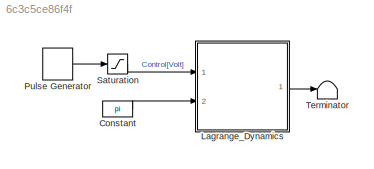
MODEL slx_6c3c5ce86f4f
KIND model
CONFIG AbsTol = auto
CONFIG FixedStep = 0.01
CONFIG MaxStep = auto
CONFIG MinStep = auto
CONFIG RelTol = 1e-3
CONFIG SampleTimeConstraint = Unconstrained
CONFIG Solver = ode5
CONFIG SolverMode = Auto
CONFIG SolverName = ode5
CONFIG StartTime = 0.0
CONFIG StopTime = 10
BLOCK [Constant] Constant
  Value = pi
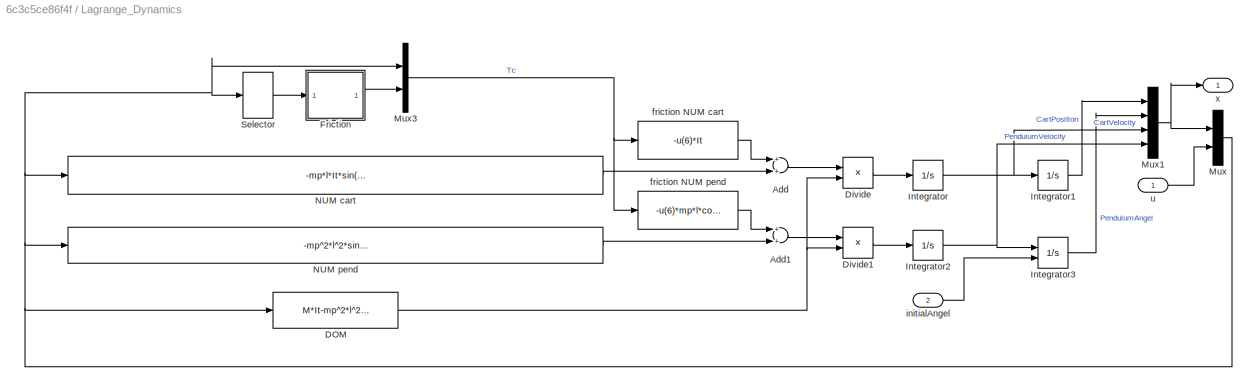
BLOCK [SubSystem] Lagrange_Dynamics
  Ports = [2, 1]
  RequestExecContextInheritance = off
BLOCK [Sum] Lagrange_Dynamics/Add
  InputSameDT = off
  OutDataTypeStr = Inherit: Inherit via internal rule
  Ports = [2, 1]
  SaturateOnIntegerOverflow = off
BLOCK [Sum] Lagrange_Dynamics/Add1
  InputSameDT = off
  OutDataTypeStr = Inherit: Inherit via internal rule
  Ports = [2, 1]
  SaturateOnIntegerOverflow = off
BLOCK [Fcn] Lagrange_Dynamics/DOM 
  Expr = M*It-mp^2*l^2*cos(u(2))^2
BLOCK [Product] Lagrange_Dynamics/Divide
  InputSameDT = off
  Inputs = */
  OutDataTypeStr = Inherit: Inherit via internal rule
  Ports = [2, 1]
  RndMeth = Floor
  SaturateOnIntegerOverflow = off
BLOCK [Product] Lagrange_Dynamics/Divide1
  InputSameDT = off
  Inputs = */
  OutDataTypeStr = Inherit: Inherit via internal rule
  Ports = [2, 1]
  RndMeth = Floor
  SaturateOnIntegerOverflow = off
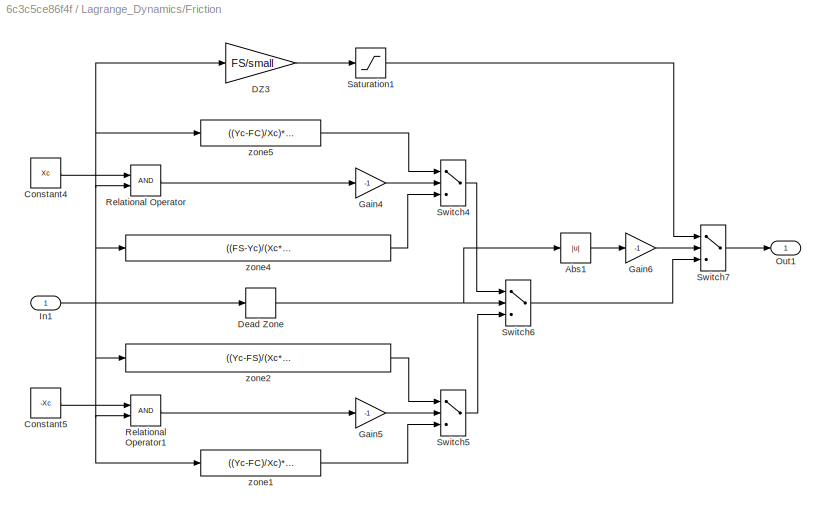
BLOCK [SubSystem] Lagrange_Dynamics/Friction
  Ports = [1, 1]
  RequestExecContextInheritance = off
BLOCK [Abs] Lagrange_Dynamics/Friction/Abs1
  SaturateOnIntegerOverflow = off
BLOCK [Constant] Lagrange_Dynamics/Friction/Constant4
  Value = Xc
BLOCK [Constant] Lagrange_Dynamics/Friction/Constant5
  Value = -Xc
BLOCK [Gain] Lagrange_Dynamics/Friction/DZ3
  Gain = FS/small
  OutDataTypeStr = Inherit: Inherit via internal rule
  ParamDataTypeStr = Inherit: Inherit via internal rule
  SaturateOnIntegerOverflow = off
BLOCK [DeadZone] Lagrange_Dynamics/Friction/Dead Zone
  LowerValue = -DZcv
  UpperValue = DZcv
BLOCK [Gain] Lagrange_Dynamics/Friction/Gain4
  Gain = -1
  OutDataTypeStr = Inherit: Inherit via internal rule
  ParamDataTypeStr = Inherit: Inherit via internal rule
  SaturateOnIntegerOverflow = off
BLOCK [Gain] Lagrange_Dynamics/Friction/Gain5
  Gain = -1
  OutDataTypeStr = Inherit: Inherit via internal rule
  ParamDataTypeStr = Inherit: Inherit via internal rule
  SaturateOnIntegerOverflow = off
BLOCK [Gain] Lagrange_Dynamics/Friction/Gain6
  Gain = -1
  OutDataTypeStr = Inherit: Inherit via internal rule
  ParamDataTypeStr = Inherit: Inherit via internal rule
  SaturateOnIntegerOverflow = off
BLOCK [Inport] Lagrange_Dynamics/Friction/In1
  IconDisplay = Port number
BLOCK [Outport] Lagrange_Dynamics/Friction/Out1
  IconDisplay = Port number
BLOCK [RelationalOperator] Lagrange_Dynamics/Friction/Relational Operator
  InputSameDT = off
  OutDataTypeStr = boolean
  Ports = [2, 1]
BLOCK [RelationalOperator] Lagrange_Dynamics/Friction/Relational Operator1
  InputSameDT = off
  OutDataTypeStr = boolean
  Ports = [2, 1]
BLOCK [Saturate] Lagrange_Dynamics/Friction/Saturation1
  InputPortMap = u0
  LowerLimit = -FS
  Ports = [1, 1]
  UpperLimit = FS
BLOCK [Switch] Lagrange_Dynamics/Friction/Switch4
  InputSameDT = off
  SaturateOnIntegerOverflow = off
BLOCK [Switch] Lagrange_Dynamics/Friction/Switch5
  InputSameDT = off
  SaturateOnIntegerOverflow = off
BLOCK [Switch] Lagrange_Dynamics/Friction/Switch6
  InputSameDT = off
  SaturateOnIntegerOverflow = off
BLOCK [Switch] Lagrange_Dynamics/Friction/Switch7
  InputSameDT = off
  SaturateOnIntegerOverflow = off
BLOCK [Fcn] Lagrange_Dynamics/Friction/zone1
  Expr = ((Yc-FC)/Xc)*u(1)-FC
BLOCK [Fcn] Lagrange_Dynamics/Friction/zone2
  Expr = ((Yc-FS)/(Xc*Xc))*(u(1)*u(1))+((2*(Yc-FS))/Xc)*u(1)-FS
BLOCK [Fcn] Lagrange_Dynamics/Friction/zone4
  Expr = ((FS-Yc)/(Xc*Xc))*(u(1)*u(1))-((2*(FS-Yc))/Xc)*u(1)+FS
BLOCK [Fcn] Lagrange_Dynamics/Friction/zone5
  Expr = ((Yc-FC)/Xc)*u(1)+FC
BLOCK [Integrator] Lagrange_Dynamics/Integrator
  Ports = [1, 1]
BLOCK [Integrator] Lagrange_Dynamics/Integrator1
  Ports = [1, 1]
BLOCK [Integrator] Lagrange_Dynamics/Integrator2
  Ports = [1, 1]
BLOCK [Integrator] Lagrange_Dynamics/Integrator3
  InitialCondition = pi
  InitialConditionSource = external
  Ports = [2, 1]
BLOCK [Mux] Lagrange_Dynamics/Mux
  DisplayOption = bar
  Inputs = 2
  Ports = [2, 1]
BLOCK [Mux] Lagrange_Dynamics/Mux1
  DisplayOption = bar
  Ports = [4, 1]
BLOCK [Mux] Lagrange_Dynamics/Mux3
  DisplayOption = bar
  Inputs = 2
  Ports = [2, 1]
BLOCK [Fcn] Lagrange_Dynamics/NUM cart 
  Expr = -mp*l*It*sin(u(2))*(u(4))^2+mp^2*l^2*g*sin(u(2))*cos(u(2))-fp*mp*l*cos(u(2))*u(4)+It*vf*u(5)
BLOCK [Fcn] Lagrange_Dynamics/NUM pend
  Expr = -mp^2*l^2*sin(u(2))*cos(u(2))*u(4)^2+M*mp*g*l*sin(u(2))-fp*M*u(4)+mp*l*cos(u(2))*vf*u(5)
BLOCK [Selector] Lagrange_Dynamics/Selector
  Indices = [3]
  InputPortWidth = 5
  Ports = [1, 1]
BLOCK [Fcn] Lagrange_Dynamics/friction NUM cart
  Expr = -u(6)*It
BLOCK [Fcn] Lagrange_Dynamics/friction NUM pend
  Expr = -u(6)*mp*l*cos(u(2))
BLOCK [Inport] Lagrange_Dynamics/initialAngel
  IconDisplay = Port number
  Port = 2
BLOCK [Inport] Lagrange_Dynamics/u
  IconDisplay = Port number
BLOCK [Outport] Lagrange_Dynamics/x
  IconDisplay = Port number
BLOCK [DiscretePulseGenerator] Pulse Generator
  Period = 100
  Ports = [0, 1]
  PulseType = Time based
  PulseWidth = 0.5
BLOCK [Saturate] Saturation
  InputPortMap = u0
  LowerLimit = -2.5
  Ports = [1, 1]
  UpperLimit = 2.5
BLOCK [Terminator] Terminator
LINE Constant:1 -> Lagrange_Dynamics:2
LINE Lagrange_Dynamics/Add1:1 -> Lagrange_Dynamics/Divide1:1
LINE Lagrange_Dynamics/Add:1 -> Lagrange_Dynamics/Divide:1
NET Lagrange_Dynamics/DOM :1 -> Lagrange_Dynamics/Divide1:2, Lagrange_Dynamics/Divide:2
LINE Lagrange_Dynamics/Divide1:1 -> Lagrange_Dynamics/Integrator2:1
LINE Lagrange_Dynamics/Divide:1 -> Lagrange_Dynamics/Integrator:1
LINE Lagrange_Dynamics/Friction/Abs1:1 -> Lagrange_Dynamics/Friction/Gain6:1
LINE Lagrange_Dynamics/Friction/Constant4:1 -> Lagrange_Dynamics/Friction/Relational Operator:1
LINE Lagrange_Dynamics/Friction/Constant5:1 -> Lagrange_Dynamics/Friction/Relational Operator1:1
LINE Lagrange_Dynamics/Friction/DZ3:1 -> Lagrange_Dynamics/Friction/Saturation1:1
NET Lagrange_Dynamics/Friction/Dead Zone:1 -> Lagrange_Dynamics/Friction/Abs1:1, Lagrange_Dynamics/Friction/Switch6:2
LINE Lagrange_Dynamics/Friction/Gain4:1 -> Lagrange_Dynamics/Friction/Switch4:2
LINE Lagrange_Dynamics/Friction/Gain5:1 -> Lagrange_Dynamics/Friction/Switch5:2
LINE Lagrange_Dynamics/Friction/Gain6:1 -> Lagrange_Dynamics/Friction/Switch7:2
NET Lagrange_Dynamics/Friction/In1:1 -> Lagrange_Dynamics/Friction/DZ3:1, Lagrange_Dynamics/Friction/Dead Zone:1, Lagrange_Dynamics/Friction/Relational Operator1:2, Lagrange_Dynamics/Friction/Relational Operator:2, Lagrange_Dynamics/Friction/zone1:1, Lagrange_Dynamics/Friction/zone2:1, Lagrange_Dynamics/Friction/zone4:1, Lagrange_Dynamics/Friction/zone5:1
LINE Lagrange_Dynamics/Friction/Relational Operator1:1 -> Lagrange_Dynamics/Friction/Gain5:1
LINE Lagrange_Dynamics/Friction/Relational Operator:1 -> Lagrange_Dynamics/Friction/Gain4:1
LINE Lagrange_Dynamics/Friction/Saturation1:1 -> Lagrange_Dynamics/Friction/Switch7:1
LINE Lagrange_Dynamics/Friction/Switch4:1 -> Lagrange_Dynamics/Friction/Switch6:1
LINE Lagrange_Dynamics/Friction/Switch5:1 -> Lagrange_Dynamics/Friction/Switch6:3
LINE Lagrange_Dynamics/Friction/Switch6:1 -> Lagrange_Dynamics/Friction/Switch7:3
LINE Lagrange_Dynamics/Friction/Switch7:1 -> Lagrange_Dynamics/Friction/Out1:1
LINE Lagrange_Dynamics/Friction/zone1:1 -> Lagrange_Dynamics/Friction/Switch5:3
LINE Lagrange_Dynamics/Friction/zone2:1 -> Lagrange_Dynamics/Friction/Switch5:1
LINE Lagrange_Dynamics/Friction/zone4:1 -> Lagrange_Dynamics/Friction/Switch4:3
LINE Lagrange_Dynamics/Friction/zone5:1 -> Lagrange_Dynamics/Friction/Switch4:1
LINE Lagrange_Dynamics/Friction:1 -> Lagrange_Dynamics/Mux3:2
LINE Lagrange_Dynamics/Integrator1:1 -> Lagrange_Dynamics/Mux1:1
NET Lagrange_Dynamics/Integrator2:1 -> Lagrange_Dynamics/Integrator3:1, Lagrange_Dynamics/Mux1:4
LINE Lagrange_Dynamics/Integrator3:1 -> Lagrange_Dynamics/Mux1:2
NET Lagrange_Dynamics/Integrator:1 -> Lagrange_Dynamics/Integrator1:1, Lagrange_Dynamics/Mux1:3
NET Lagrange_Dynamics/Mux1:1 -> Lagrange_Dynamics/Mux:1, Lagrange_Dynamics/x:1
NET Lagrange_Dynamics/Mux3:1 -> Lagrange_Dynamics/friction NUM cart:1, Lagrange_Dynamics/friction NUM pend:1
NET Lagrange_Dynamics/Mux:1 -> Lagrange_Dynamics/DOM :1, Lagrange_Dynamics/Mux3:1, Lagrange_Dynamics/NUM cart :1, Lagrange_Dynamics/NUM pend:1, Lagrange_Dynamics/Selector:1
LINE Lagrange_Dynamics/NUM cart :1 -> Lagrange_Dynamics/Add:2
LINE Lagrange_Dynamics/NUM pend:1 -> Lagrange_Dynamics/Add1:2
LINE Lagrange_Dynamics/Selector:1 -> Lagrange_Dynamics/Friction:1
LINE Lagrange_Dynamics/friction NUM cart:1 -> Lagrange_Dynamics/Add:1
LINE Lagrange_Dynamics/friction NUM pend:1 -> Lagrange_Dynamics/Add1:1
LINE Lagrange_Dynamics/initialAngel:1 -> Lagrange_Dynamics/Integrator3:2
LINE Lagrange_Dynamics/u:1 -> Lagrange_Dynamics/Mux:2
LINE Lagrange_Dynamics:1 -> Terminator:1
LINE Pulse Generator:1 -> Saturation:1
LINE Saturation:1 -> Lagrange_Dynamics:1
note: NET lines group one-source signal fan-out (src -> all destinations, sorted); 1:1 wires keep LINE
